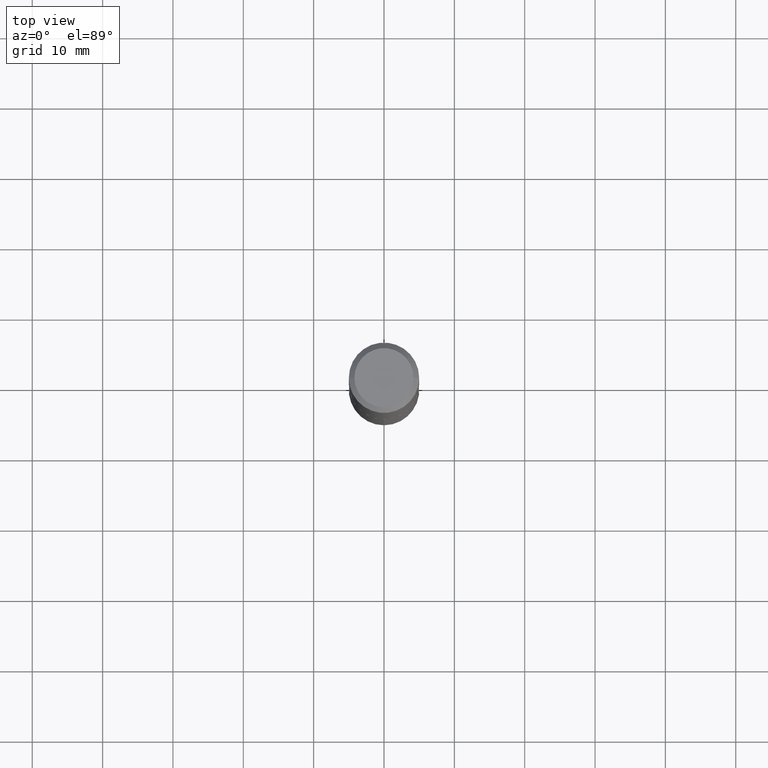
[diagram: clean part render]
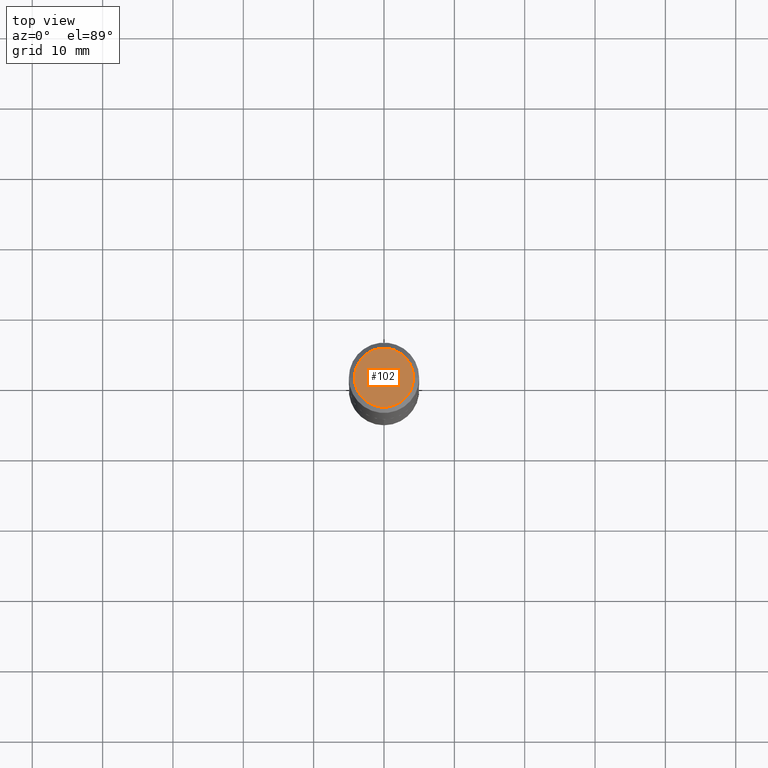
[diagram: same view with one face highlighted and labeled with its STEP entity id]
A machine part, top view. The second image highlights one B-rep face of the part: STEP entity #102.
In plain terms, the highlighted planar face has unit normal (0, -0, -1).
Its self-contained STEP definition (entity closure, byte-faithful):
#36 = DIRECTION ( 'NONE',  ( 2.438088387897960049E-29, -3.491481338843145188E-15, -1.000000000000000000 ) ) ;
#102 = ADVANCED_FACE ( 'NONE', ( #305 ), #243, .F. ) ;
#116 = AXIS2_PLACEMENT_3D ( 'NONE', #307, #36, #371 ) ;
#119 = CARTESIAN_POINT ( 'NONE',  ( -1.178467787315320954E-46, 1.682539673960460375E-32, 4.818985154644838991E-18 ) ) ;
#148 = AXIS2_PLACEMENT_3D ( 'NONE', #119, #175, #385 ) ;
#175 = DIRECTION ( 'NONE',  ( -2.445468806185136597E-29, 3.491481338843145583E-15, 1.000000000000000000 ) ) ;
#200 = DIRECTION ( 'NONE',  ( -2.445468806185136597E-29, 3.491481338843145583E-15, 1.000000000000000000 ) ) ;
#214 = CARTESIAN_POINT ( 'NONE',  ( 0.1655999999999999972, -1.297848145565570390E-15, 4.818985154653420164E-18 ) ) ;
#227 = VERTEX_POINT ( 'NONE', #214 ) ;
#243 = PLANE ( 'NONE',  #116 ) ;
#254 = ORIENTED_EDGE ( 'NONE', *, *, #339, .T. ) ;
#291 = CARTESIAN_POINT ( 'NONE',  ( -1.178467787315320954E-46, 1.682539673960460375E-32, 4.818985154644838991E-18 ) ) ;
#298 = ORIENTED_EDGE ( 'NONE', *, *, #357, .T. ) ;
#300 = VERTEX_POINT ( 'NONE', #310 ) ;
#302 = AXIS2_PLACEMENT_3D ( 'NONE', #291, #200, #349 ) ;
#305 = FACE_OUTER_BOUND ( 'NONE', #353, .T. ) ;
#307 = CARTESIAN_POINT ( 'NONE',  ( -5.892338936576604772E-47, 8.412698369802301877E-33, 2.409492577322419495E-18 ) ) ;
#309 = CIRCLE ( 'NONE', #302, 0.1655999999999999972 ) ;
#310 = CARTESIAN_POINT ( 'NONE',  ( -0.1655999999999999972, 1.210933015344269141E-15, 4.818985154636560574E-18 ) ) ;
#321 = CIRCLE ( 'NONE', #148, 0.1655999999999999972 ) ;
#339 = EDGE_CURVE ( 'NONE', #227, #300, #321, .T. ) ;
#349 = DIRECTION ( 'NONE',  ( 1.000000000000000000, -6.982962677686266711E-15, 4.876363190812712291E-29 ) ) ;
#353 = EDGE_LOOP ( 'NONE', ( #298, #254 ) ) ;
#357 = EDGE_CURVE ( 'NONE', #300, #227, #309, .T. ) ;
#371 = DIRECTION ( 'NONE',  ( -1.000000000000000000, 6.982962677686265922E-15, -4.876176775795935793E-29 ) ) ;
#385 = DIRECTION ( 'NONE',  ( 1.000000000000000000, -6.982962677686266711E-15, 4.876363190812712291E-29 ) ) ;